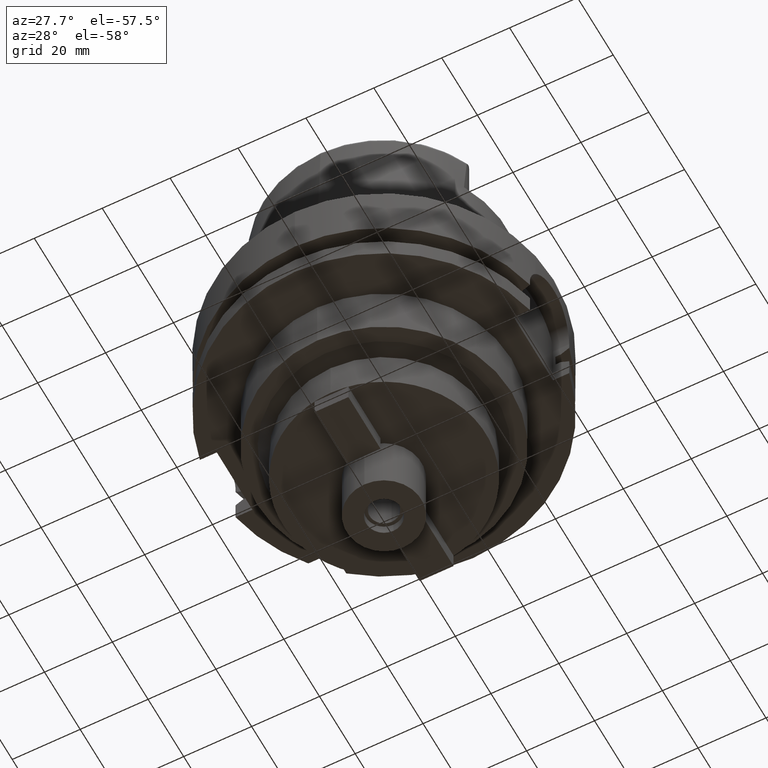
[diagram: clean part render]
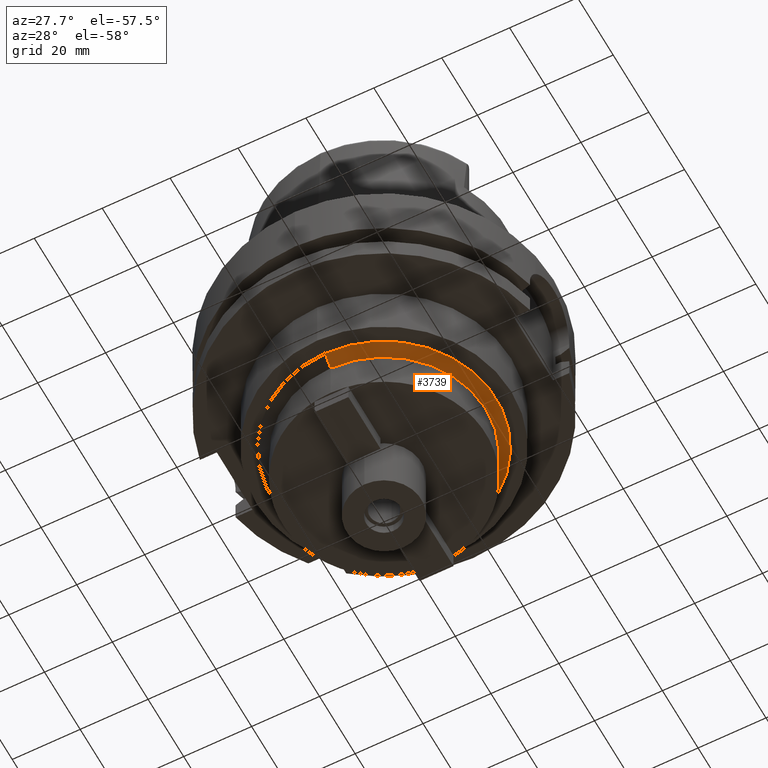
[diagram: same view with one face highlighted and labeled with its STEP entity id]
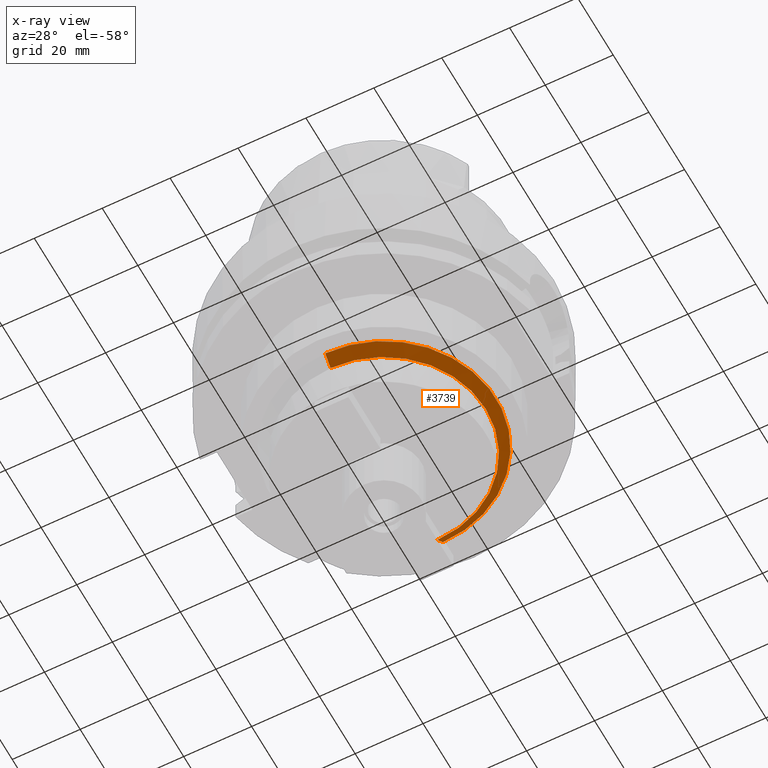
[diagram: x-ray of the same camera — body ghosted, the highlighted face saturated]
A machine part, auxiliary view. The second image highlights one B-rep face of the part: STEP entity #3739.
The next image is the same camera in x-ray: the body ghosted, the highlighted face saturated — about 0% of this face is hidden behind the body in this view.
In plain terms, the highlighted conical surface has half-angle 45 deg.
Its self-contained STEP definition (entity closure, byte-faithful):
#1213=DIRECTION('',(0.E0,7.071067811865E-1,-7.071067811865E-1));
#1214=VECTOR('',#1213,4.242640687119E0);
#1215=CARTESIAN_POINT('',(0.E0,-3.3E1,-4.5E1));
#1216=LINE('',#1215,#1214);
#1228=DIRECTION('',(0.E0,-7.071067811865E-1,-7.071067811865E-1));
#1229=VECTOR('',#1228,4.242640687119E0);
#1230=CARTESIAN_POINT('',(0.E0,3.3E1,-4.5E1));
#1231=LINE('',#1230,#1229);
#1235=CARTESIAN_POINT('',(0.E0,0.E0,-4.8E1));
#1236=DIRECTION('',(0.E0,0.E0,-1.E0));
#1237=DIRECTION('',(0.E0,1.E0,0.E0));
#1238=AXIS2_PLACEMENT_3D('',#1235,#1236,#1237);
#1267=CARTESIAN_POINT('',(0.E0,0.E0,-4.5E1));
#1268=DIRECTION('',(0.E0,0.E0,-1.E0));
#1269=DIRECTION('',(0.E0,1.E0,0.E0));
#1270=AXIS2_PLACEMENT_3D('',#1267,#1268,#1269);
#2645=CARTESIAN_POINT('',(0.E0,3.E1,-4.8E1));
#2646=VERTEX_POINT('',#2645);
#2647=CARTESIAN_POINT('',(0.E0,-3.E1,-4.8E1));
#2648=VERTEX_POINT('',#2647);
#2649=CARTESIAN_POINT('',(0.E0,3.3E1,-4.5E1));
#2650=VERTEX_POINT('',#2649);
#2651=CARTESIAN_POINT('',(0.E0,-3.3E1,-4.5E1));
#2652=VERTEX_POINT('',#2651);
#3727=CARTESIAN_POINT('',(0.E0,0.E0,-4.65E1));
#3728=DIRECTION('',(0.E0,0.E0,1.E0));
#3729=DIRECTION('',(0.E0,1.E0,0.E0));
#3730=AXIS2_PLACEMENT_3D('',#3727,#3728,#3729);
#3731=CONICAL_SURFACE('',#3730,3.15E1,4.5E1);
#3732=ORIENTED_EDGE('',*,*,#3717,.T.);
#3733=ORIENTED_EDGE('',*,*,#3694,.T.);
#3734=ORIENTED_EDGE('',*,*,#3721,.F.);
#3736=ORIENTED_EDGE('',*,*,#3735,.F.);
#3737=EDGE_LOOP('',(#3732,#3733,#3734,#3736));
#3738=FACE_OUTER_BOUND('',#3737,.F.);
#1239=CIRCLE('',#1238,3.E1);
#1271=CIRCLE('',#1270,3.3E1);
#3694=EDGE_CURVE('',#2646,#2648,#1239,.T.);
#3717=EDGE_CURVE('',#2650,#2646,#1231,.T.);
#3721=EDGE_CURVE('',#2652,#2648,#1216,.T.);
#3735=EDGE_CURVE('',#2650,#2652,#1271,.T.);
#3739=ADVANCED_FACE('',(#3738),#3731,.T.);